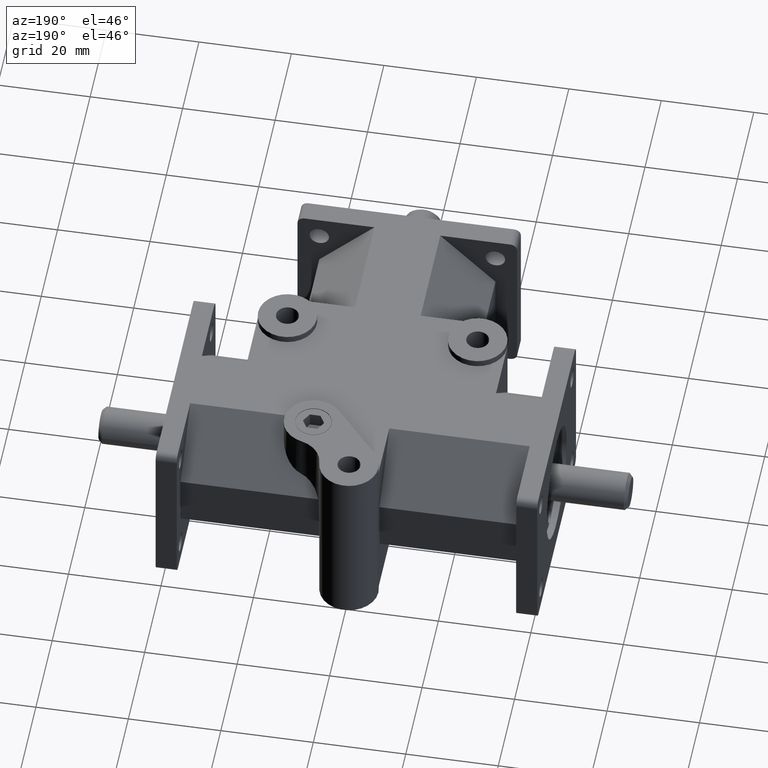
[diagram: clean part render]
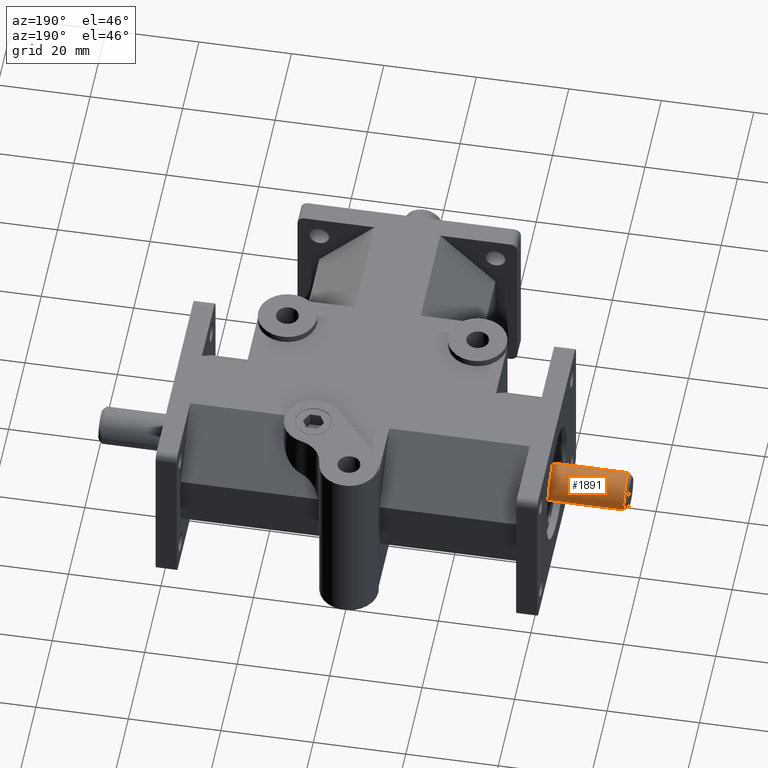
[diagram: same view with one face highlighted and labeled with its STEP entity id]
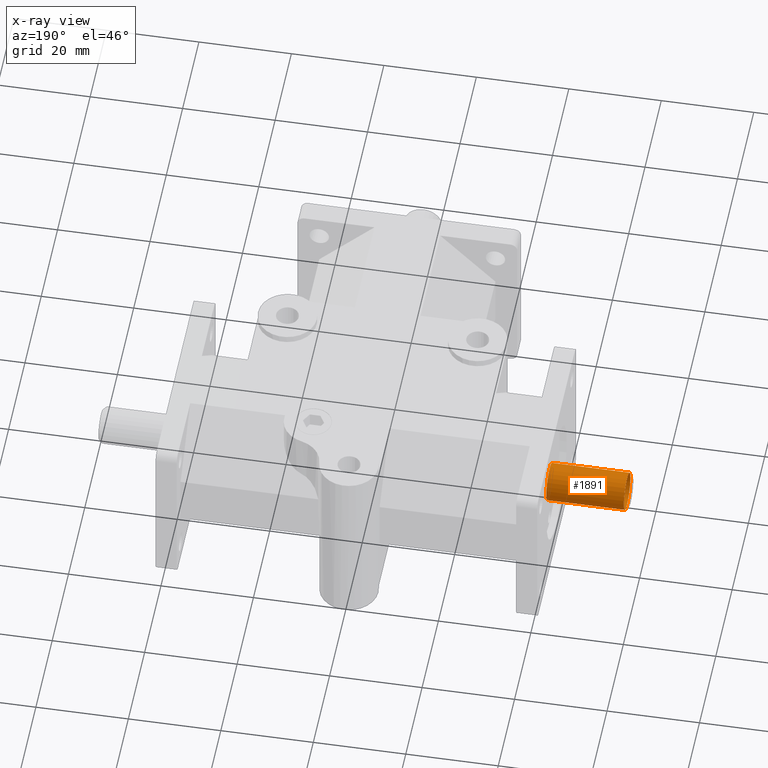
[diagram: x-ray of the same camera — body ghosted, the highlighted face saturated]
A machine part, auxiliary view. The second image highlights one B-rep face of the part: STEP entity #1891.
The next image is the same camera in x-ray: the body ghosted, the highlighted face saturated — about 0% of this face is hidden behind the body in this view.
In plain terms, the highlighted cylindrical surface (bore or boss wall) has radius 4 mm, axis along (-1, 0, 0).
Its self-contained STEP definition (entity closure, byte-faithful):
#416=VERTEX_POINT('',#2783);
#418=VERTEX_POINT('',#2788);
#611=CIRCLE('',#2021,4.);
#613=CIRCLE('',#2024,4.);
#712=EDGE_CURVE('',#416,#416,#611,.T.);
#714=EDGE_CURVE('',#418,#418,#613,.T.);
#980=ORIENTED_EDGE('',*,*,#714,.F.);
#981=ORIENTED_EDGE('',*,*,#712,.F.);
#1500=EDGE_LOOP('',(#980));
#1501=EDGE_LOOP('',(#981));
#1699=FACE_BOUND('',#1500,.T.);
#1700=FACE_BOUND('',#1501,.T.);
#1891=ADVANCED_FACE('',(#1699,#1700),#3323,.T.);
#2021=AXIS2_PLACEMENT_3D('',#2782,#2260,#2261);
#2023=AXIS2_PLACEMENT_3D('',#2786,#2264,#2265);
#2024=AXIS2_PLACEMENT_3D('',#2787,#2266,#2267);
#2260=DIRECTION('',(-1.,0.,0.));
#2261=DIRECTION('',(0.,4.,0.));
#2264=DIRECTION('',(-1.,0.,0.));
#2265=DIRECTION('',(0.,-4.,0.));
#2266=DIRECTION('',(1.,0.,0.));
#2267=DIRECTION('',(0.,-4.,0.));
#2782=CARTESIAN_POINT('',(-56.513,55.5625,0.));
#2783=CARTESIAN_POINT('',(-56.513,51.5625,4.89842541528951E-016));
#2786=CARTESIAN_POINT('',(-48.513,55.5625,0.));
#2787=CARTESIAN_POINT('',(-39.751,55.5625,0.));
#2788=CARTESIAN_POINT('',(-39.751,51.5625,0.));
#3323=CYLINDRICAL_SURFACE('',#2023,4.);